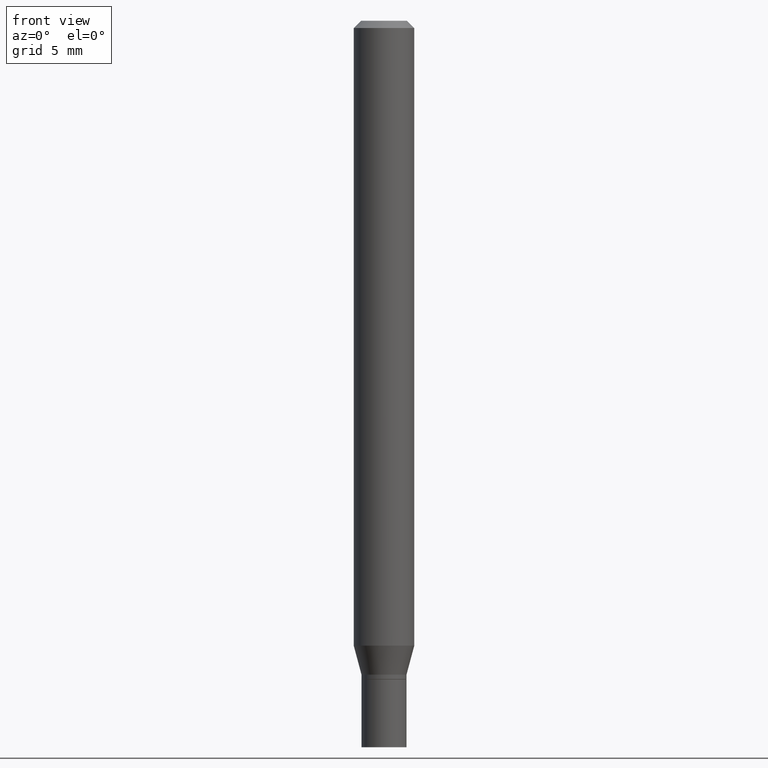
[diagram: clean part render]
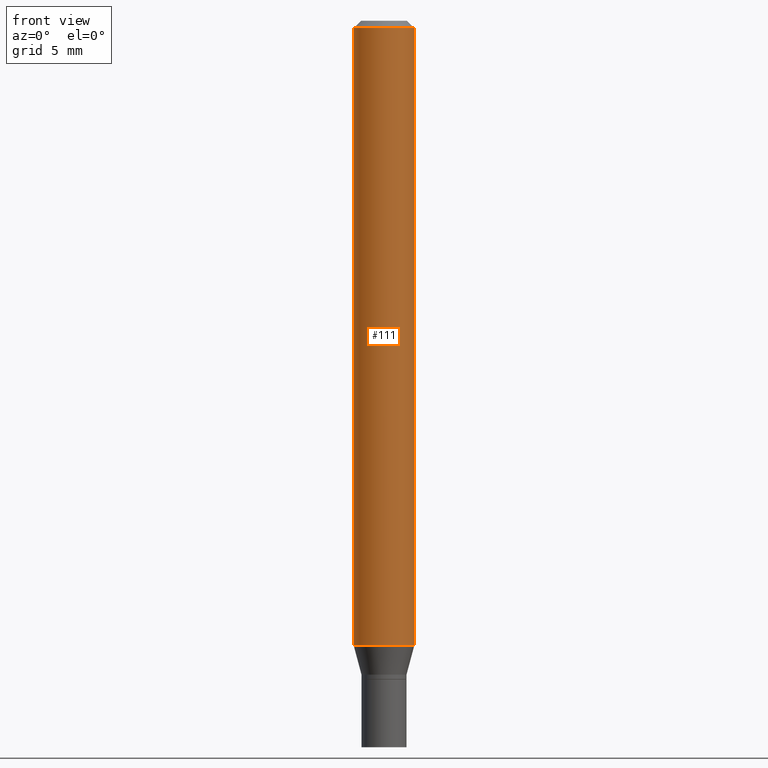
[diagram: same view with one face highlighted and labeled with its STEP entity id]
A machine part, front view. The second image highlights one B-rep face of the part: STEP entity #111.
In plain terms, the highlighted cylindrical surface (edge-blend (fillet) strip) has radius 1.5875 mm, axis along (-0, 0, 1).
Its self-contained STEP definition (entity closure, byte-faithful):
#28 = VERTEX_POINT ( 'NONE', #328 ) ;
#31 = ORIENTED_EDGE ( 'NONE', *, *, #356, .F. ) ;
#46 = FACE_OUTER_BOUND ( 'NONE', #273, .T. ) ;
#65 = VERTEX_POINT ( 'NONE', #288 ) ;
#76 = DIRECTION ( 'NONE',  ( 1.000000000000000000, -6.982962677686266711E-15, 4.876176775795935793E-29 ) ) ;
#97 = LINE ( 'NONE', #145, #456 ) ;
#102 = CIRCLE ( 'NONE', #375, 0.06250000000000000000 ) ;
#111 = ADVANCED_FACE ( 'NONE', ( #46 ), #187, .T. ) ;
#112 = DIRECTION ( 'NONE',  ( -2.445468806185136597E-29, 3.491481338843145583E-15, 1.000000000000000000 ) ) ;
#126 = CARTESIAN_POINT ( 'NONE',  ( 0.06250000000000000000, -4.364351673553916694E-16, 3.047610484872459871E-30 ) ) ;
#145 = CARTESIAN_POINT ( 'NONE',  ( -0.06250000000000000000, 4.440892098500626162E-16, -3.074334431409316114E-30 ) ) ;
#185 = AXIS2_PLACEMENT_3D ( 'NONE', #330, #404, #76 ) ;
#187 = CYLINDRICAL_SURFACE ( 'NONE', #185, 0.06250000000000000000 ) ;
#192 = DIRECTION ( 'NONE',  ( 1.000000000000000000, -6.982962677686266711E-15, 0.000000000000000000 ) ) ;
#256 = CARTESIAN_POINT ( 'NONE',  ( -0.06250000000000000000, -4.060924425584323195E-15, -1.290287187078897668 ) ) ;
#273 = EDGE_LOOP ( 'NONE', ( #31, #387, #450, #394 ) ) ;
#282 = EDGE_CURVE ( 'NONE', #419, #65, #336, .T. ) ;
#288 = CARTESIAN_POINT ( 'NONE',  ( 0.06250000000000000000, -4.888073874380388472E-16, -0.01499999999999999944 ) ) ;
#313 = CIRCLE ( 'NONE', #397, 0.06250000000000000000 ) ;
#328 = CARTESIAN_POINT ( 'NONE',  ( -0.06250000000000000000, -1.834603717908453632E-15, -0.01499999999999999944 ) ) ;
#329 = DIRECTION ( 'NONE',  ( 1.000000000000000000, -6.982962677686262766E-15, 0.000000000000000000 ) ) ;
#330 = CARTESIAN_POINT ( 'NONE',  ( 0.000000000000000000, 0.000000000000000000, 0.000000000000000000 ) ) ;
#334 = DIRECTION ( 'NONE',  ( -2.445468806185136597E-29, 3.491481338843145583E-15, 1.000000000000000000 ) ) ;
#336 = LINE ( 'NONE', #126, #409 ) ;
#356 = EDGE_CURVE ( 'NONE', #422, #28, #97, .T. ) ;
#369 = DIRECTION ( 'NONE',  ( -2.445468806185136877E-29, 3.491481338843145188E-15, 1.000000000000000000 ) ) ;
#375 = AXIS2_PLACEMENT_3D ( 'NONE', #393, #334, #329 ) ;
#387 = ORIENTED_EDGE ( 'NONE', *, *, #401, .T. ) ;
#393 = CARTESIAN_POINT ( 'NONE',  ( 3.155357067021810045E-29, -4.505013635434385811E-15, -1.290287187078897668 ) ) ;
#394 = ORIENTED_EDGE ( 'NONE', *, *, #447, .F. ) ;
#397 = AXIS2_PLACEMENT_3D ( 'NONE', #406, #112, #192 ) ;
#401 = EDGE_CURVE ( 'NONE', #422, #419, #102, .T. ) ;
#404 = DIRECTION ( 'NONE',  ( -2.445468806185136597E-29, 3.491481338843145583E-15, 1.000000000000000000 ) ) ;
#406 = CARTESIAN_POINT ( 'NONE',  ( 3.668203209277705088E-31, -5.237222008264718399E-17, -0.01499999999999999944 ) ) ;
#409 = VECTOR ( 'NONE', #410, 39.37007874015748143 ) ;
#410 = DIRECTION ( 'NONE',  ( -2.445468806185136877E-29, 3.491481338843145188E-15, 1.000000000000000000 ) ) ;
#419 = VERTEX_POINT ( 'NONE', #438 ) ;
#422 = VERTEX_POINT ( 'NONE', #256 ) ;
#438 = CARTESIAN_POINT ( 'NONE',  ( 0.06250000000000000000, -4.941448802789777481E-15, -1.290287187078897668 ) ) ;
#447 = EDGE_CURVE ( 'NONE', #28, #65, #313, .T. ) ;
#450 = ORIENTED_EDGE ( 'NONE', *, *, #282, .T. ) ;
#456 = VECTOR ( 'NONE', #369, 39.37007874015748143 ) ;